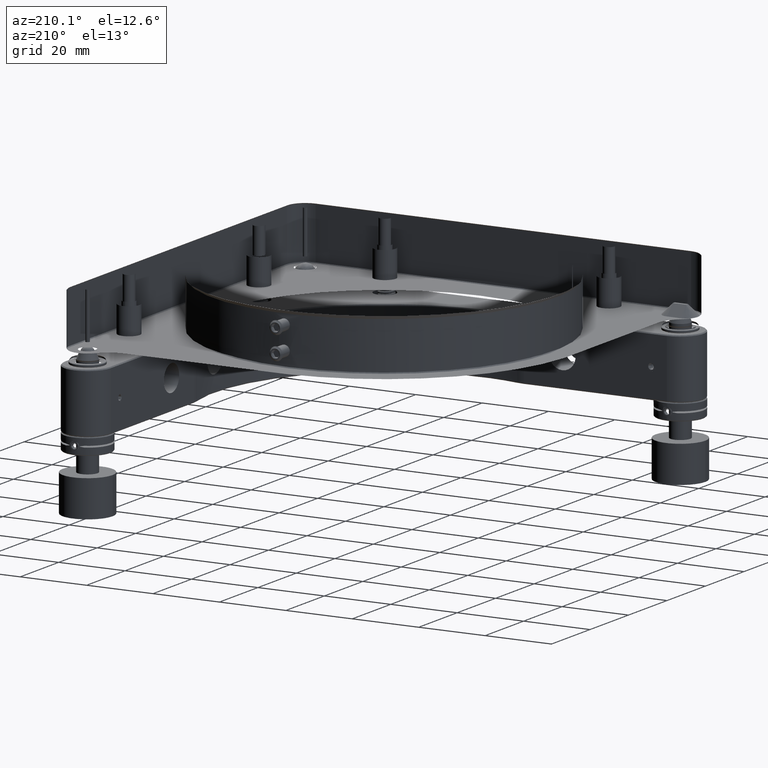
[diagram: clean part render]
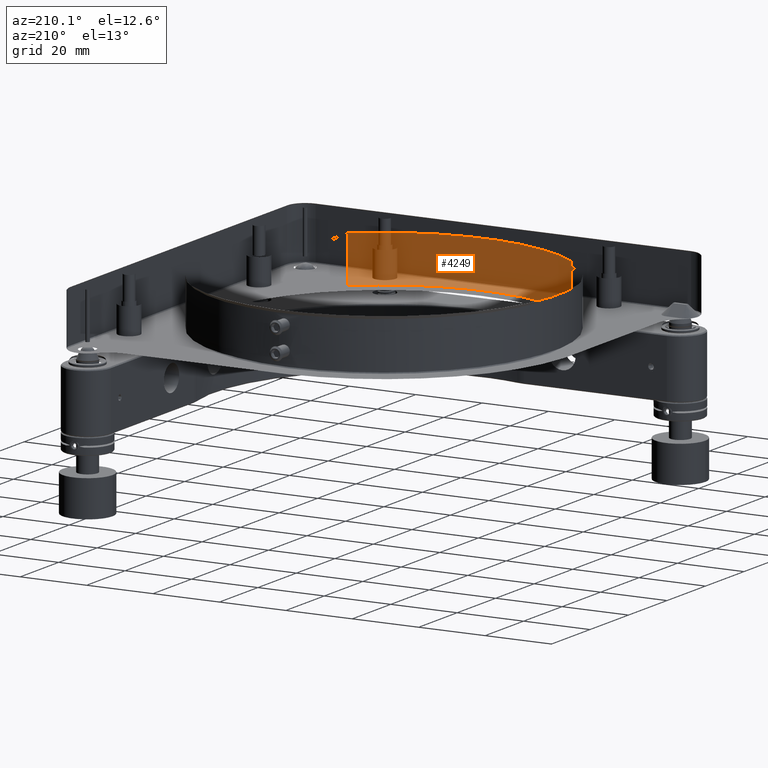
[diagram: same view with one face highlighted and labeled with its STEP entity id]
A machine part, auxiliary view. The second image highlights one B-rep face of the part: STEP entity #4249.
In plain terms, the highlighted cylindrical surface (partial cylindrical patch) has radius 51.8 mm, axis along (0, 0, 1).
Its self-contained STEP definition (entity closure, byte-faithful):
#544 = VERTEX_POINT ( 'NONE', #4366 ) ;
#676 = DIRECTION ( 'NONE',  ( -0.000000000000000000, -0.000000000000000000, -1.000000000000000000 ) ) ;
#775 = ORIENTED_EDGE ( 'NONE', *, *, #12882, .T. ) ;
#1193 = DIRECTION ( 'NONE',  ( -0.000000000000000000, -0.000000000000000000, -1.000000000000000000 ) ) ;
#1788 = CARTESIAN_POINT ( 'NONE',  ( -33.78321825012845636, -39.26746954750434071, -133.5172436876140978 ) ) ;
#1899 = AXIS2_PLACEMENT_3D ( 'NONE', #7467, #9587, #9473 ) ;
#2965 = EDGE_LOOP ( 'NONE', ( #775, #15891, #3510, #15171 ) ) ;
#3510 = ORIENTED_EDGE ( 'NONE', *, *, #12270, .T. ) ;
#3643 = DIRECTION ( 'NONE',  ( 1.000000000000000000, 0.000000000000000000, 0.000000000000000000 ) ) ;
#3712 = VERTEX_POINT ( 'NONE', #8473 ) ;
#4127 = LINE ( 'NONE', #10833, #12678 ) ;
#4249 = ADVANCED_FACE ( 'NONE', ( #11037 ), #17740, .T. ) ;
#4366 = CARTESIAN_POINT ( 'NONE',  ( -33.78321825012845636, -39.26746954750433360, 27.99528137423851959 ) ) ;
#4593 = VERTEX_POINT ( 'NONE', #20888 ) ;
#4770 = VECTOR ( 'NONE', #20640, 1000.000000000000000 ) ;
#5752 = CARTESIAN_POINT ( 'NONE',  ( 6.418476861114183725E-14, 3.361026734705063745E-14, 13.99528137423852669 ) ) ;
#6038 = EDGE_CURVE ( 'NONE', #3712, #544, #8595, .T. ) ;
#7467 = CARTESIAN_POINT ( 'NONE',  ( 6.418476861114183725E-14, 3.361026734705063745E-14, -133.5172436876140978 ) ) ;
#8438 = DIRECTION ( 'NONE',  ( 1.000000000000000000, 0.000000000000000000, 0.000000000000000000 ) ) ;
#8473 = CARTESIAN_POINT ( 'NONE',  ( -33.78321825012845636, -39.26746954750434071, 13.99528137423852669 ) ) ;
#8595 = LINE ( 'NONE', #1788, #4770 ) ;
#9193 = EDGE_CURVE ( 'NONE', #11058, #4593, #4127, .T. ) ;
#9473 = DIRECTION ( 'NONE',  ( 1.000000000000000000, 0.000000000000000000, 0.000000000000000000 ) ) ;
#9587 = DIRECTION ( 'NONE',  ( 0.000000000000000000, 0.000000000000000000, 1.000000000000000000 ) ) ;
#10833 = CARTESIAN_POINT ( 'NONE',  ( 33.78321825012859847, -39.26746954750431229, -133.5172436876140978 ) ) ;
#11037 = FACE_OUTER_BOUND ( 'NONE', #2965, .T. ) ;
#11058 = VERTEX_POINT ( 'NONE', #19264 ) ;
#12270 = EDGE_CURVE ( 'NONE', #3712, #4593, #16655, .T. ) ;
#12678 = VECTOR ( 'NONE', #676, 1000.000000000000000 ) ;
#12882 = EDGE_CURVE ( 'NONE', #11058, #544, #18091, .T. ) ;
#15171 = ORIENTED_EDGE ( 'NONE', *, *, #9193, .F. ) ;
#15712 = DIRECTION ( 'NONE',  ( 0.000000000000000000, 0.000000000000000000, 1.000000000000000000 ) ) ;
#15891 = ORIENTED_EDGE ( 'NONE', *, *, #6038, .F. ) ;
#16655 = CIRCLE ( 'NONE', #20568, 51.79999999999999005 ) ;
#17740 = CYLINDRICAL_SURFACE ( 'NONE', #1899, 51.79999999999999005 ) ;
#18049 = CARTESIAN_POINT ( 'NONE',  ( 6.418476861114183725E-14, 3.361026734705063745E-14, 27.99528137423851248 ) ) ;
#18091 = CIRCLE ( 'NONE', #20582, 51.79999999999999005 ) ;
#19264 = CARTESIAN_POINT ( 'NONE',  ( 33.78321825012859136, -39.26746954750431939, 27.99528137423851248 ) ) ;
#20568 = AXIS2_PLACEMENT_3D ( 'NONE', #5752, #15712, #3643 ) ;
#20582 = AXIS2_PLACEMENT_3D ( 'NONE', #18049, #1193, #8438 ) ;
#20640 = DIRECTION ( 'NONE',  ( 0.000000000000000000, 0.000000000000000000, 1.000000000000000000 ) ) ;
#20888 = CARTESIAN_POINT ( 'NONE',  ( 33.78321825012859136, -39.26746954750431939, 13.99528137423852669 ) ) ;